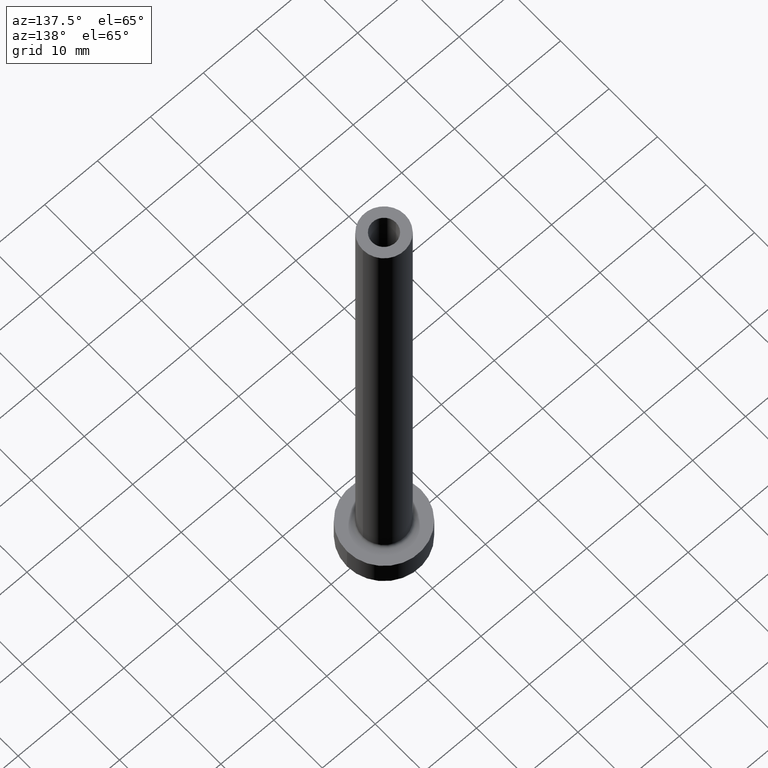
[diagram: clean part render]
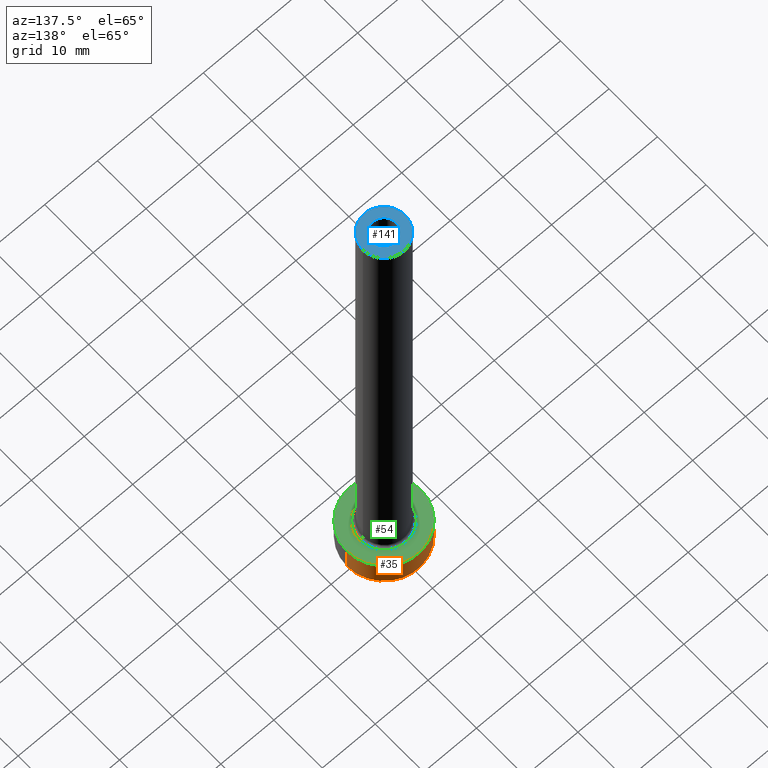
[diagram: same view with three faces highlighted in distinct colors, each labeled with its STEP entity id]
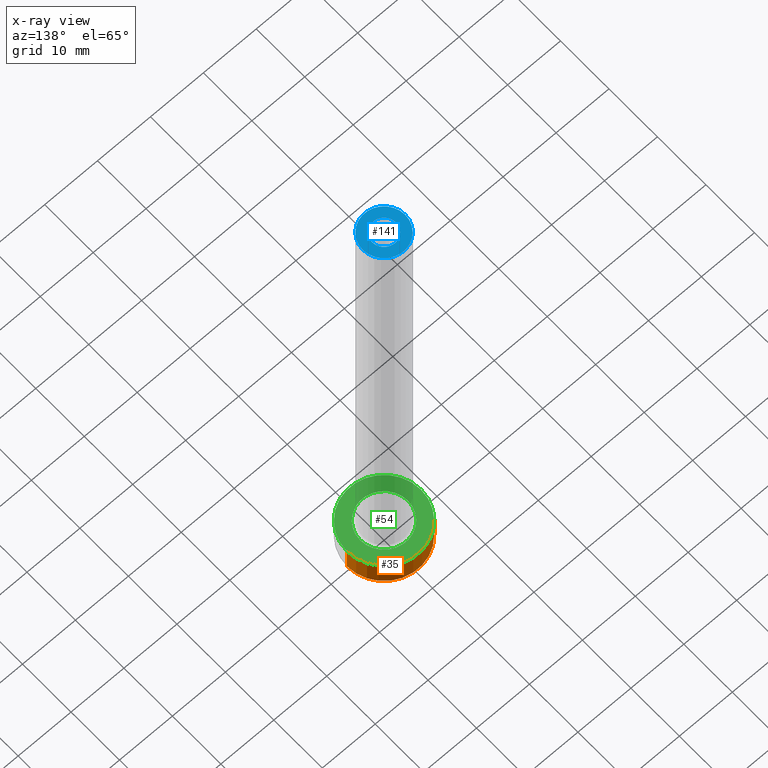
[diagram: x-ray of the same camera — body ghosted, the three highlighted faces saturated]
A machine part, auxiliary view with three faces highlighted in distinct colors.
The next image is the same camera in x-ray (body ghosted, the three faces saturated) — at least one of them is partly hidden behind the body in this view.
Their STEP definitions:

[orange] entity #35 — the highlighted cylindrical surface (partial cylindrical patch) has radius 7 mm, axis along (-0, -0, -1).
#35 = ADVANCED_FACE ( 'NONE', ( #309 ), #134, .T. ) ;
#41 = LINE ( 'NONE', #155, #81 ) ;
#56 = EDGE_CURVE ( 'NONE', #160, #135, #194, .T. ) ;
#76 = CARTESIAN_POINT ( 'NONE',  ( 7.000000000000000000, 8.572527594031473190E-16, 5.000000000000000000 ) ) ;
#81 = VECTOR ( 'NONE', #120, 1000.000000000000000 ) ;
#87 = DIRECTION ( 'NONE',  ( 0.000000000000000000, 0.000000000000000000, 1.000000000000000000 ) ) ;
#114 = AXIS2_PLACEMENT_3D ( 'NONE', #279, #385, #381 ) ;
#119 = AXIS2_PLACEMENT_3D ( 'NONE', #268, #87, #408 ) ;
#120 = DIRECTION ( 'NONE',  ( -0.000000000000000000, -0.000000000000000000, -1.000000000000000000 ) ) ;
#134 = CYLINDRICAL_SURFACE ( 'NONE', #274, 7.000000000000000000 ) ;
#135 = VERTEX_POINT ( 'NONE', #246 ) ;
#152 = EDGE_CURVE ( 'NONE', #135, #387, #41, .T. ) ;
#155 = CARTESIAN_POINT ( 'NONE',  ( -7.000000000000000000, 0.000000000000000000, 5.000000000000000000 ) ) ;
#160 = VERTEX_POINT ( 'NONE', #76 ) ;
#170 = ORIENTED_EDGE ( 'NONE', *, *, #363, .T. ) ;
#179 = VERTEX_POINT ( 'NONE', #331 ) ;
#193 = LINE ( 'NONE', #411, #405 ) ;
#194 = CIRCLE ( 'NONE', #114, 7.000000000000000000 ) ;
#246 = CARTESIAN_POINT ( 'NONE',  ( -7.000000000000000000, 0.000000000000000000, 5.000000000000000000 ) ) ;
#268 = CARTESIAN_POINT ( 'NONE',  ( 0.000000000000000000, 0.000000000000000000, 0.000000000000000000 ) ) ;
#273 = DIRECTION ( 'NONE',  ( -0.000000000000000000, -0.000000000000000000, -1.000000000000000000 ) ) ;
#274 = AXIS2_PLACEMENT_3D ( 'NONE', #455, #273, #344 ) ;
#275 = EDGE_LOOP ( 'NONE', ( #351, #453, #170, #286 ) ) ;
#279 = CARTESIAN_POINT ( 'NONE',  ( 0.000000000000000000, 0.000000000000000000, 5.000000000000000000 ) ) ;
#286 = ORIENTED_EDGE ( 'NONE', *, *, #152, .F. ) ;
#300 = DIRECTION ( 'NONE',  ( -0.000000000000000000, -0.000000000000000000, -1.000000000000000000 ) ) ;
#309 = FACE_OUTER_BOUND ( 'NONE', #275, .T. ) ;
#315 = CIRCLE ( 'NONE', #119, 7.000000000000000000 ) ;
#331 = CARTESIAN_POINT ( 'NONE',  ( 7.000000000000000000, 8.572527594031473190E-16, 0.000000000000000000 ) ) ;
#336 = CARTESIAN_POINT ( 'NONE',  ( -7.000000000000000000, 0.000000000000000000, 0.000000000000000000 ) ) ;
#337 = EDGE_CURVE ( 'NONE', #160, #179, #193, .T. ) ;
#344 = DIRECTION ( 'NONE',  ( -1.000000000000000000, 0.000000000000000000, 0.000000000000000000 ) ) ;
#351 = ORIENTED_EDGE ( 'NONE', *, *, #56, .F. ) ;
#363 = EDGE_CURVE ( 'NONE', #179, #387, #315, .T. ) ;
#381 = DIRECTION ( 'NONE',  ( 1.000000000000000000, 0.000000000000000000, 0.000000000000000000 ) ) ;
#385 = DIRECTION ( 'NONE',  ( 0.000000000000000000, 0.000000000000000000, 1.000000000000000000 ) ) ;
#387 = VERTEX_POINT ( 'NONE', #336 ) ;
#405 = VECTOR ( 'NONE', #300, 1000.000000000000000 ) ;
#408 = DIRECTION ( 'NONE',  ( 1.000000000000000000, 0.000000000000000000, 0.000000000000000000 ) ) ;
#411 = CARTESIAN_POINT ( 'NONE',  ( 7.000000000000000000, 8.572527594031473190E-16, 5.000000000000000000 ) ) ;
#453 = ORIENTED_EDGE ( 'NONE', *, *, #337, .T. ) ;
#455 = CARTESIAN_POINT ( 'NONE',  ( 0.000000000000000000, 0.000000000000000000, 5.000000000000000000 ) ) ;

[blue] entity #141 — the highlighted planar face has unit normal (0, 0, 1).
#10 = CARTESIAN_POINT ( 'NONE',  ( 0.000000000000000000, 0.000000000000000000, 100.0000000000000000 ) ) ;
#19 = CARTESIAN_POINT ( 'NONE',  ( -2.250000000000000000, 0.000000000000000000, 100.0000000000000000 ) ) ;
#20 = DIRECTION ( 'NONE',  ( 1.000000000000000000, 0.000000000000000000, 0.000000000000000000 ) ) ;
#21 = EDGE_CURVE ( 'NONE', #62, #374, #340, .T. ) ;
#55 = CARTESIAN_POINT ( 'NONE',  ( 0.000000000000000000, 0.000000000000000000, 100.0000000000000000 ) ) ;
#62 = VERTEX_POINT ( 'NONE', #426 ) ;
#64 = PLANE ( 'NONE',  #201 ) ;
#75 = DIRECTION ( 'NONE',  ( 0.000000000000000000, 0.000000000000000000, 1.000000000000000000 ) ) ;
#85 = ORIENTED_EDGE ( 'NONE', *, *, #278, .T. ) ;
#86 = ORIENTED_EDGE ( 'NONE', *, *, #357, .F. ) ;
#89 = AXIS2_PLACEMENT_3D ( 'NONE', #447, #129, #370 ) ;
#93 = AXIS2_PLACEMENT_3D ( 'NONE', #55, #196, #20 ) ;
#117 = EDGE_CURVE ( 'NONE', #290, #323, #287, .T. ) ;
#129 = DIRECTION ( 'NONE',  ( 0.000000000000000000, 0.000000000000000000, 1.000000000000000000 ) ) ;
#141 = ADVANCED_FACE ( 'NONE', ( #251, #200 ), #64, .T. ) ;
#147 = DIRECTION ( 'NONE',  ( 1.000000000000000000, 0.000000000000000000, -0.000000000000000000 ) ) ;
#148 = EDGE_LOOP ( 'NONE', ( #183, #85 ) ) ;
#168 = CARTESIAN_POINT ( 'NONE',  ( 0.000000000000000000, 0.000000000000000000, 100.0000000000000000 ) ) ;
#183 = ORIENTED_EDGE ( 'NONE', *, *, #117, .T. ) ;
#186 = CARTESIAN_POINT ( 'NONE',  ( -4.000000000000000000, 0.000000000000000000, 100.0000000000000000 ) ) ;
#196 = DIRECTION ( 'NONE',  ( 0.000000000000000000, 0.000000000000000000, 1.000000000000000000 ) ) ;
#198 = CARTESIAN_POINT ( 'NONE',  ( 4.000000000000000000, 4.898587196589412829E-16, 100.0000000000000000 ) ) ;
#200 = FACE_OUTER_BOUND ( 'NONE', #148, .T. ) ;
#201 = AXIS2_PLACEMENT_3D ( 'NONE', #208, #283, #147 ) ;
#208 = CARTESIAN_POINT ( 'NONE',  ( 0.000000000000000000, 0.000000000000000000, 100.0000000000000000 ) ) ;
#225 = AXIS2_PLACEMENT_3D ( 'NONE', #10, #75, #333 ) ;
#251 = FACE_BOUND ( 'NONE', #356, .T. ) ;
#277 = ORIENTED_EDGE ( 'NONE', *, *, #21, .F. ) ;
#278 = EDGE_CURVE ( 'NONE', #323, #290, #378, .T. ) ;
#283 = DIRECTION ( 'NONE',  ( 0.000000000000000000, 0.000000000000000000, 1.000000000000000000 ) ) ;
#285 = DIRECTION ( 'NONE',  ( 1.000000000000000000, 0.000000000000000000, 0.000000000000000000 ) ) ;
#287 = CIRCLE ( 'NONE', #425, 4.000000000000000000 ) ;
#290 = VERTEX_POINT ( 'NONE', #186 ) ;
#323 = VERTEX_POINT ( 'NONE', #198 ) ;
#333 = DIRECTION ( 'NONE',  ( 1.000000000000000000, 0.000000000000000000, 0.000000000000000000 ) ) ;
#340 = CIRCLE ( 'NONE', #93, 2.250000000000000000 ) ;
#356 = EDGE_LOOP ( 'NONE', ( #86, #277 ) ) ;
#357 = EDGE_CURVE ( 'NONE', #374, #62, #429, .T. ) ;
#370 = DIRECTION ( 'NONE',  ( 1.000000000000000000, 0.000000000000000000, 0.000000000000000000 ) ) ;
#374 = VERTEX_POINT ( 'NONE', #19 ) ;
#378 = CIRCLE ( 'NONE', #225, 4.000000000000000000 ) ;
#425 = AXIS2_PLACEMENT_3D ( 'NONE', #168, #459, #285 ) ;
#426 = CARTESIAN_POINT ( 'NONE',  ( 2.250000000000000000, 2.755455298081543792E-16, 100.0000000000000000 ) ) ;
#429 = CIRCLE ( 'NONE', #89, 2.250000000000000000 ) ;
#447 = CARTESIAN_POINT ( 'NONE',  ( 0.000000000000000000, 0.000000000000000000, 100.0000000000000000 ) ) ;
#459 = DIRECTION ( 'NONE',  ( 0.000000000000000000, 0.000000000000000000, 1.000000000000000000 ) ) ;

[green] entity #54 — the highlighted planar face has unit normal (0, 0, 1).
#51 = ORIENTED_EDGE ( 'NONE', *, *, #77, .T. ) ;
#54 = ADVANCED_FACE ( 'NONE', ( #415, #393 ), #143, .T. ) ;
#56 = EDGE_CURVE ( 'NONE', #160, #135, #194, .T. ) ;
#57 = AXIS2_PLACEMENT_3D ( 'NONE', #213, #355, #452 ) ;
#58 = DIRECTION ( 'NONE',  ( 1.000000000000000000, 0.000000000000000000, -0.000000000000000000 ) ) ;
#76 = CARTESIAN_POINT ( 'NONE',  ( 7.000000000000000000, 8.572527594031473190E-16, 5.000000000000000000 ) ) ;
#77 = EDGE_CURVE ( 'NONE', #135, #160, #171, .T. ) ;
#92 = EDGE_CURVE ( 'NONE', #248, #280, #222, .T. ) ;
#96 = ORIENTED_EDGE ( 'NONE', *, *, #56, .T. ) ;
#99 = EDGE_LOOP ( 'NONE', ( #214, #242 ) ) ;
#111 = CARTESIAN_POINT ( 'NONE',  ( 4.500000000000000888, 0.000000000000000000, 5.000000000000002665 ) ) ;
#114 = AXIS2_PLACEMENT_3D ( 'NONE', #279, #385, #381 ) ;
#135 = VERTEX_POINT ( 'NONE', #246 ) ;
#136 = AXIS2_PLACEMENT_3D ( 'NONE', #180, #424, #58 ) ;
#138 = DIRECTION ( 'NONE',  ( 1.000000000000000000, 0.000000000000000000, 0.000000000000000000 ) ) ;
#143 = PLANE ( 'NONE',  #136 ) ;
#160 = VERTEX_POINT ( 'NONE', #76 ) ;
#171 = CIRCLE ( 'NONE', #350, 7.000000000000000000 ) ;
#180 = CARTESIAN_POINT ( 'NONE',  ( 0.000000000000000000, 0.000000000000000000, 5.000000000000000000 ) ) ;
#188 = EDGE_CURVE ( 'NONE', #280, #248, #354, .T. ) ;
#194 = CIRCLE ( 'NONE', #114, 7.000000000000000000 ) ;
#213 = CARTESIAN_POINT ( 'NONE',  ( 0.000000000000000000, 0.000000000000000000, 5.000000000000000000 ) ) ;
#214 = ORIENTED_EDGE ( 'NONE', *, *, #92, .T. ) ;
#222 = CIRCLE ( 'NONE', #57, 4.500000000000000888 ) ;
#242 = ORIENTED_EDGE ( 'NONE', *, *, #188, .T. ) ;
#246 = CARTESIAN_POINT ( 'NONE',  ( -7.000000000000000000, 0.000000000000000000, 5.000000000000000000 ) ) ;
#247 = CARTESIAN_POINT ( 'NONE',  ( 0.000000000000000000, 0.000000000000000000, 5.000000000000000000 ) ) ;
#248 = VERTEX_POINT ( 'NONE', #111 ) ;
#255 = CARTESIAN_POINT ( 'NONE',  ( 0.000000000000000000, 0.000000000000000000, 5.000000000000000000 ) ) ;
#260 = DIRECTION ( 'NONE',  ( -0.000000000000000000, -0.000000000000000000, -1.000000000000000000 ) ) ;
#279 = CARTESIAN_POINT ( 'NONE',  ( 0.000000000000000000, 0.000000000000000000, 5.000000000000000000 ) ) ;
#280 = VERTEX_POINT ( 'NONE', #362 ) ;
#297 = AXIS2_PLACEMENT_3D ( 'NONE', #255, #260, #438 ) ;
#346 = DIRECTION ( 'NONE',  ( 0.000000000000000000, 0.000000000000000000, 1.000000000000000000 ) ) ;
#350 = AXIS2_PLACEMENT_3D ( 'NONE', #247, #346, #138 ) ;
#354 = CIRCLE ( 'NONE', #297, 4.500000000000000888 ) ;
#355 = DIRECTION ( 'NONE',  ( -0.000000000000000000, -0.000000000000000000, -1.000000000000000000 ) ) ;
#362 = CARTESIAN_POINT ( 'NONE',  ( -4.500000000000000888, 5.510910596163088569E-16, 5.000000000000002665 ) ) ;
#381 = DIRECTION ( 'NONE',  ( 1.000000000000000000, 0.000000000000000000, 0.000000000000000000 ) ) ;
#385 = DIRECTION ( 'NONE',  ( 0.000000000000000000, 0.000000000000000000, 1.000000000000000000 ) ) ;
#393 = FACE_OUTER_BOUND ( 'NONE', #397, .T. ) ;
#397 = EDGE_LOOP ( 'NONE', ( #51, #96 ) ) ;
#415 = FACE_BOUND ( 'NONE', #99, .T. ) ;
#424 = DIRECTION ( 'NONE',  ( 0.000000000000000000, 0.000000000000000000, 1.000000000000000000 ) ) ;
#438 = DIRECTION ( 'NONE',  ( 1.000000000000000000, 0.000000000000000000, 0.000000000000000000 ) ) ;
#452 = DIRECTION ( 'NONE',  ( 1.000000000000000000, 0.000000000000000000, 0.000000000000000000 ) ) ;